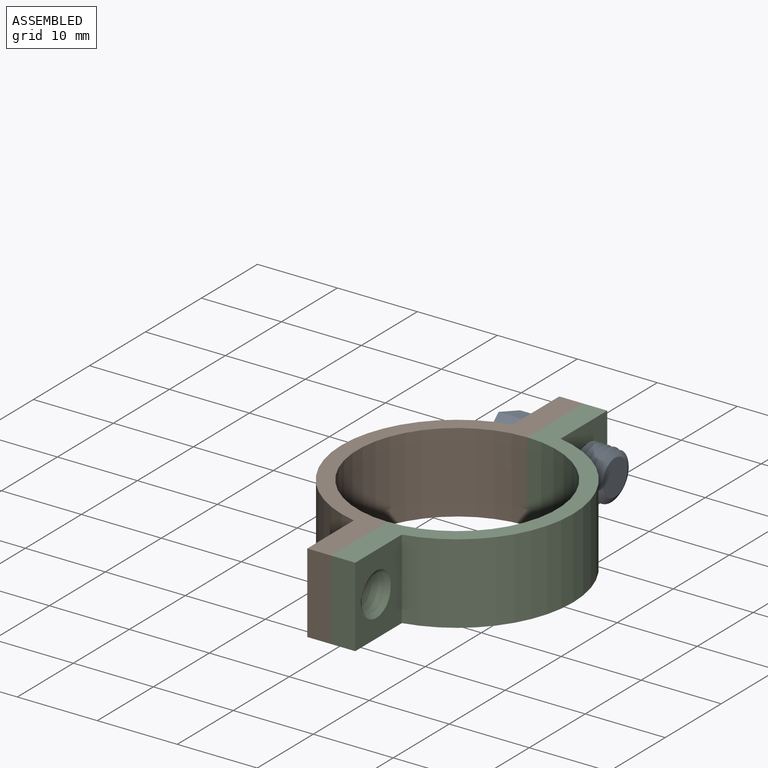
[diagram: assembled view]
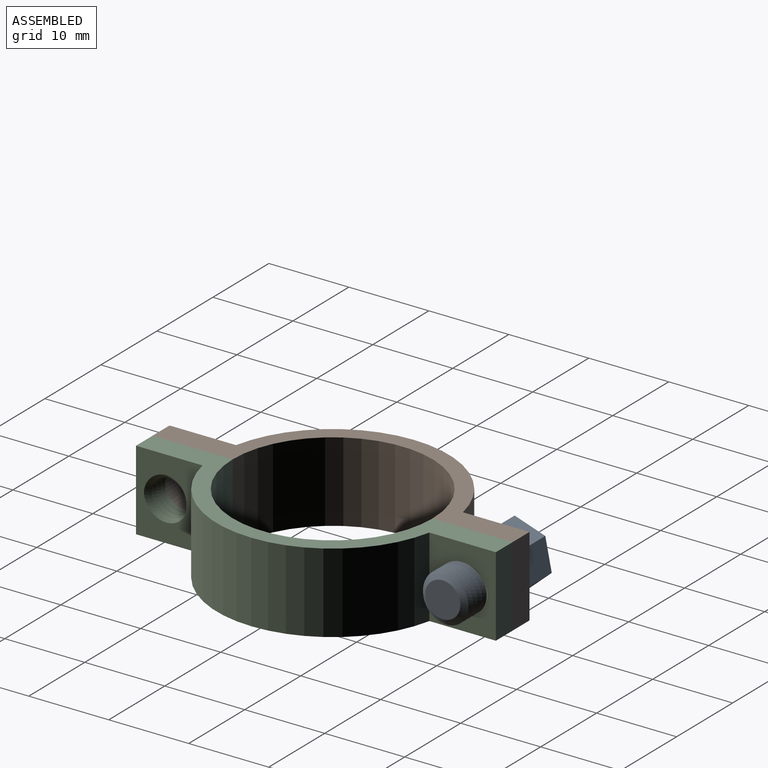
[diagram: assembled view, second angle]
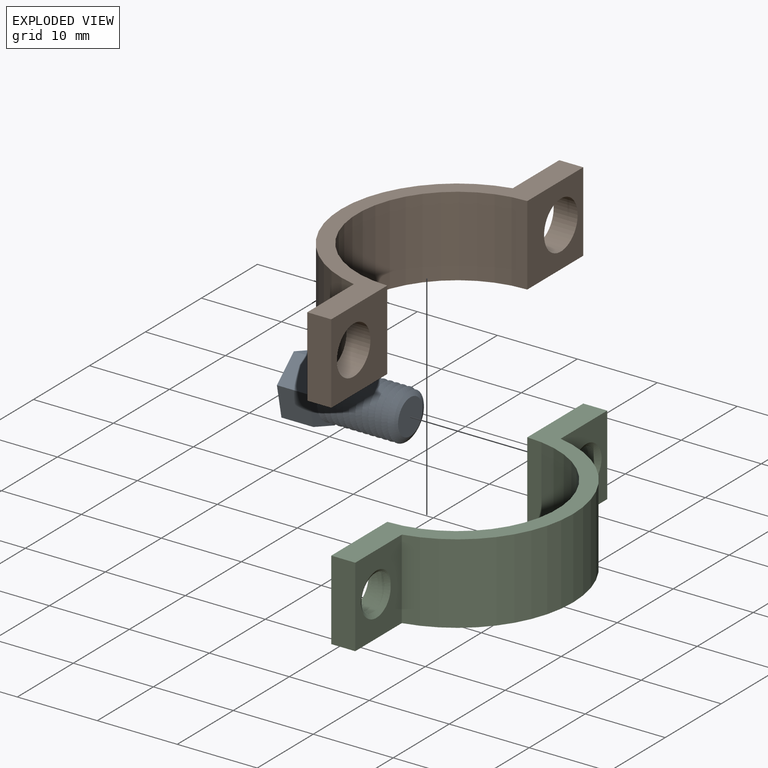
[diagram: exploded view]
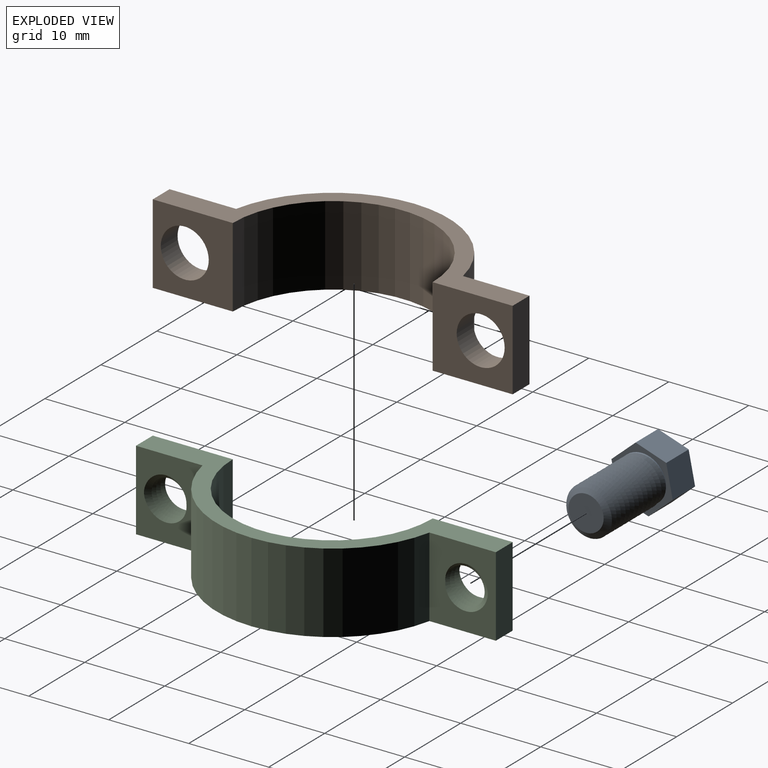
[diagram: exploded view, second angle]
ASSEMBLY  parts=3 mates=2
PART A: 14 faces, bbox 14.9x8.6x7.6 mm
  f0: cylinder r=3mm len=9.6mm, axis (1,0,0), area -8mm2, adj f2,f3,f4,f5,f13
  f1: plane 4.4x4.4mm, normal (1,0,0), area 15.2mm2, adj f2
  f2: cone r=3mm half-angle=63.4deg, axis (-1,0,0), area 8mm2, adj f0,f1,f4,f5
  f3: plane 0.68x0.4mm, normal (0,0,-1), area 0.1mm2, adj f0,f4,f13
  f4: bspline ~10.53x6.93mm, area 157.8mm2, adj f0,f2,f3,f5
  f5: bspline ~10.4x6.93mm, area 161.5mm2, adj f0,f2,f4,f13
  f6: plane 4.04x4mm, normal (0,-0.01,1), area 16.2mm2, adj f7,f11,f12,f13
  f7: plane 4x3.47mm, normal (0,0.86,0.51), area 16.2mm2, adj f6,f8,f12,f13
  f8: plane 4x3.53mm, normal (0,0.87,-0.49), area 16.2mm2, adj f7,f9,f12,f13
  f9: plane 4.04x4mm, normal (0,0.01,-1), area 16.2mm2, adj f8,f10,f12,f13
  f10: plane 4x3.47mm, normal (0,-0.86,-0.51), area 16.2mm2, adj f9,f11,f12,f13
  f11: plane 4x3.53mm, normal (0,-0.87,0.49), area 16.2mm2, adj f6,f10,f12,f13
  f12: plane 8.08x7.05mm, normal (-1,0,0), area 42.4mm2, adj f6,f7,f8,f9,f10,f11
  f13: plane 8.63x7.6mm, normal (1,0,0), area 17.1mm2, adj f0,f3,f5,f6,f7,f8,f9,f10
PART B: 12 faces, bbox 14.5x45x10 mm
  f0: plane 10x8.31mm, normal (-1,0,0), area 54.9mm2, adj f1,f7,f8,f9,f10
  f1: cylinder r=14.5mm len=28.37mm, axis (0,0,-1), area 395.1mm2, adj f0,f2,f8,f9
  f2: plane 10x8.31mm, normal (-1,0,0), area 54.9mm2, adj f1,f3,f8,f9,f11
  f3: plane 10x3mm, normal (0,-1,0), area 30mm2, adj f2,f4,f8,f9
  f4: plane 10x10mm, normal (1,0,0), area 71.7mm2, adj f3,f5,f8,f9,f11
  f5: cylinder r=12.5mm len=25mm, axis (0,0,-1), area 392.7mm2, adj f4,f6,f8,f9
  f6: plane 10x10mm, normal (1,0,0), area 71.7mm2, adj f5,f7,f8,f9,f10
  f7: plane 10x3mm, normal (0,1,0), area 30mm2, adj f0,f6,f8,f9
  f8: plane 45x14.5mm, normal (0,0,1), area 133.4mm2, adj f0,f1,f2,f3,f4,f5,f6,f7
  f9: plane 45x14.5mm, normal (0,0,-1), area 133.4mm2, adj f0,f1,f2,f3,f4,f5,f6,f7
  f10: cylinder r=3mm len=6mm, axis (-1,0,0), area 56.5mm2, adj f0,f6
  f11: cylinder r=3mm len=6mm, axis (-1,0,0), area 56.5mm2, adj f2,f4
PART C: 16 faces, bbox 15.5x45.6x10.6 mm
  f0: plane 10.55x10.55mm, normal (-1,0,0), area 77.6mm2, adj f4,f7,f8,f9,f10,f11,f12
  f1: plane 10.55x10.55mm, normal (-1,0,0), area 77.6mm2, adj f4,f5,f8,f9,f13,f14,f15
  f2: plane 10.55x8.86mm, normal (1,0,0), area 60.7mm2, adj f5,f6,f8,f9,f13,f14,f15
  f3: plane 10.55x8.86mm, normal (1,0,0), area 60.7mm2, adj f6,f7,f8,f9,f10,f11,f12
  f4: cylinder r=12.5mm len=25mm, axis (0,0,-1), area 392.7mm2, adj f0,f1,f8,f9
  f5: plane 10x3mm, normal (0,-1,0), area 30mm2, adj f1,f2,f8,f9
  f6: cylinder r=14.5mm len=28.37mm, axis (0,0,-1), area 395.1mm2, adj f2,f3,f8,f9
  f7: plane 10x3mm, normal (0,1,0), area 30mm2, adj f0,f3,f8,f9
  f8: plane 45x14.5mm, normal (0,0,1), area 133.4mm2, adj f0,f1,f2,f3,f4,f5,f6,f7
  f9: plane 45x14.5mm, normal (0,0,-1), area 133.4mm2, adj f0,f1,f2,f3,f4,f5,f6,f7
  f10: cylinder r=3mm len=6mm, axis (1,0,0), area 0.7mm2, adj f0,f3,f11,f12
  f11: bspline ~6.93x6mm, area 49.6mm2, adj f0,f3,f10,f12
  f12: bspline ~6.93x6mm, area 49.6mm2, adj f0,f3,f10,f11
  f13: cylinder r=3mm len=6mm, axis (1,0,0), area 0.7mm2, adj f1,f2,f14,f15
  f14: bspline ~6.93x6mm, area 49.6mm2, adj f1,f2,f13,f15
  f15: bspline ~6.93x6mm, area 49.6mm2, adj f1,f2,f13,f14
PLACE A rot(axis=(-1,0,0),19.3deg) t=(1.78,-0.61,6.38)mm
PLACE B at identity
PLACE C at identity fixed
MATE slider C.f9 <-> B.f9  axis (0,0,-1) through (0,12.5,0)mm
MATE cylindrical C.f10 <-> A.f0  axis (1,0,0) through (3,18.5,5)mm
